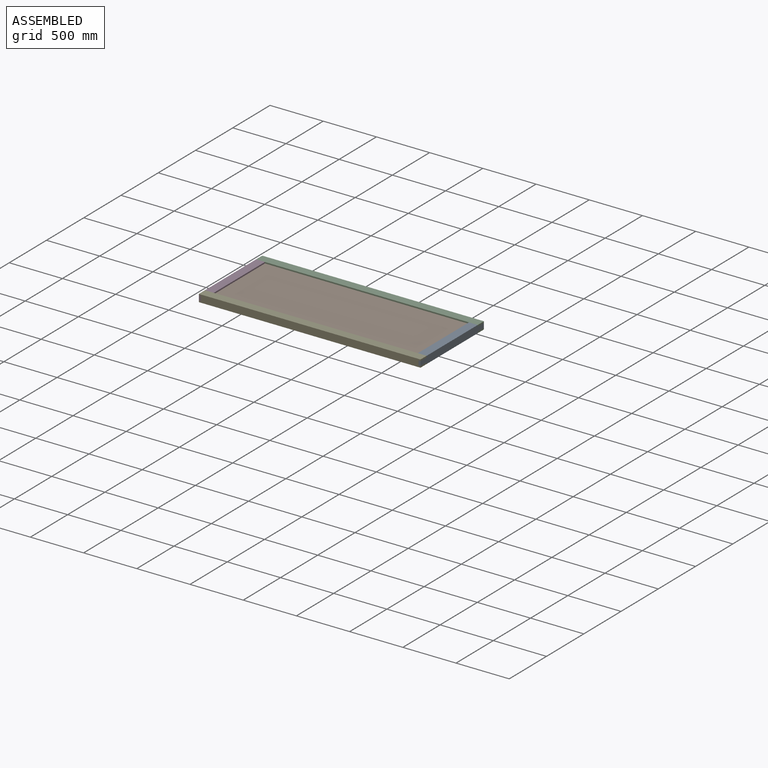
[diagram: assembled view]
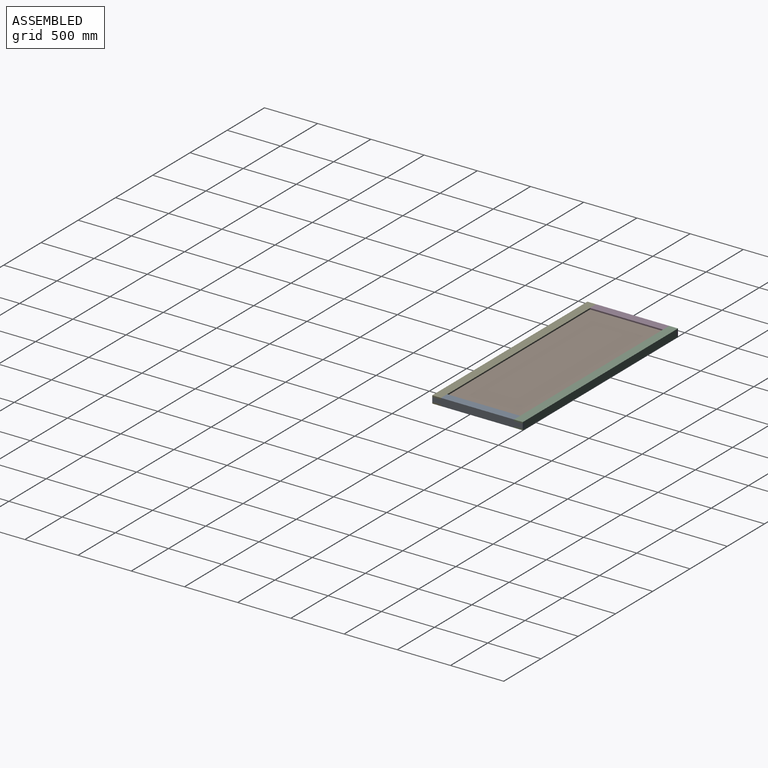
[diagram: assembled view, second angle]
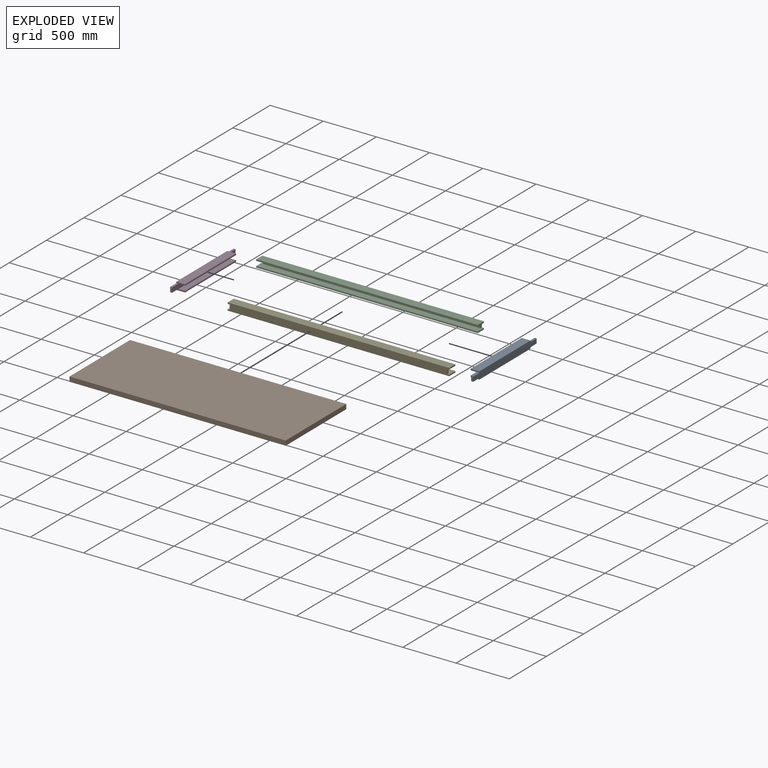
[diagram: exploded view]
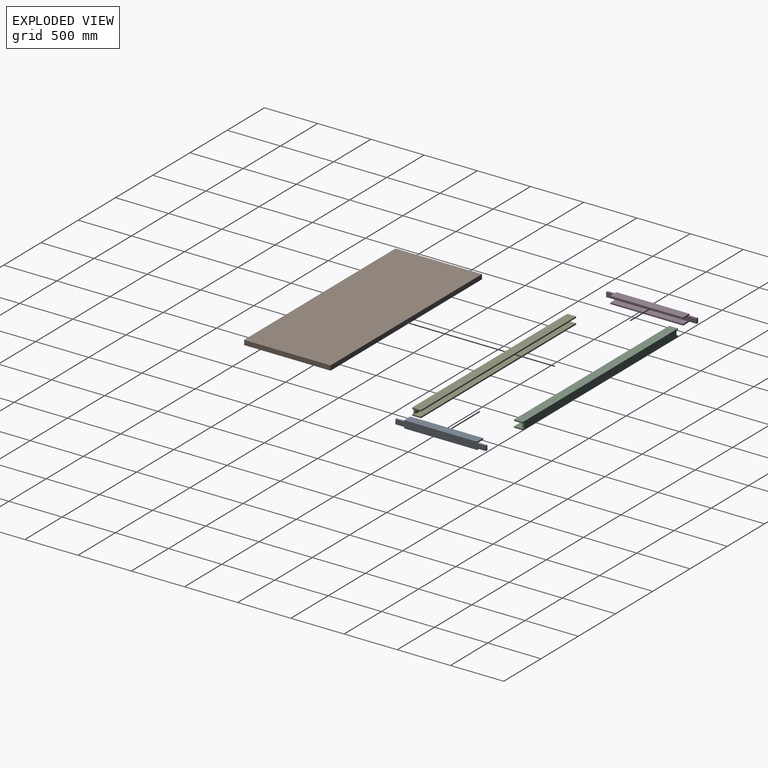
[diagram: exploded view, second angle]
ASSEMBLY  parts=5 mates=4
PART A: 18 faces, bbox 850.9x82.6x69.9 mm
  f0: plane 850.9x44.45mm, normal (0,-1,0), area 37822.5mm2, adj f1,f6,f7,f8,f9,f10,f14,f16
  f1: plane 82.55x19.05mm, normal (0,0,1), area 1572.6mm2, adj f0,f4,f7,f11
  f2: plane 82.55x12.7mm, normal (-1,0,0), area 1048.4mm2, adj f4,f5,f10,f16,f17
  f3: plane 82.55x12.7mm, normal (1,0,0), area 1048.4mm2, adj f4,f5,f6,f16,f17
  f4: plane 850.9x69.85mm, normal (0,1,0), area 55241.8mm2, adj f1,f2,f3,f5,f6,f7,f8,f9
  f5: plane 685.8x82.55mm, normal (0,0,-1), area 56612.8mm2, adj f2,f3,f4,f17
  f6: plane 82.55x19.05mm, normal (0,0,-1), area 1572.6mm2, adj f0,f3,f4,f8
  f7: plane 44.45x19.05mm, normal (-1,0,0), area 846.8mm2, adj f0,f1,f4,f10
  f8: plane 44.45x19.05mm, normal (1,0,0), area 846.8mm2, adj f0,f4,f6,f9
  f9: plane 82.55x19.05mm, normal (0,0,1), area 1572.6mm2, adj f0,f4,f8,f12
  f10: plane 82.55x19.05mm, normal (0,0,-1), area 1572.6mm2, adj f0,f2,f4,f7
  f11: plane 82.55x12.7mm, normal (-1,0,0), area 1048.4mm2, adj f1,f4,f13,f14,f15
  f12: plane 82.55x12.7mm, normal (1,0,0), area 1048.4mm2, adj f4,f9,f13,f14,f15
  f13: plane 685.8x82.55mm, normal (0,0,1), area 56612.8mm2, adj f4,f11,f12,f15
  f14: plane 685.8x63.5mm, normal (0,0,-1), area 43548.3mm2, adj f0,f11,f12,f15
  f15: plane 685.8x12.7mm, normal (0,-1,0), area 8709.7mm2, adj f11,f12,f13,f14
  f16: plane 685.8x63.5mm, normal (0,0,1), area 43548.3mm2, adj f0,f2,f3,f17
  f17: plane 685.8x12.7mm, normal (0,-1,0), area 8709.7mm2, adj f2,f3,f5,f16
PART B: 6 faces, bbox 812.8x2032x44.5 mm
  f0: plane 2032x44.45mm, normal (-1,0,0), area 90322.4mm2, adj f1,f3,f4,f5
  f1: plane 812.8x44.45mm, normal (0,-1,0), area 36129mm2, adj f0,f2,f4,f5
  f2: plane 2032x44.45mm, normal (1,0,0), area 90322.4mm2, adj f1,f3,f4,f5
  f3: plane 812.8x44.45mm, normal (0,1,0), area 36129mm2, adj f0,f2,f4,f5
  f4: plane 2032x812.8mm, normal (0,0,1), area 1651609.6mm2, adj f0,f1,f2,f3
  f5: plane 2032x812.8mm, normal (0,0,-1), area 1651609.6mm2, adj f0,f1,f2,f3
PART C: 14 faces, bbox 2082.8x82.6x69.9 mm
  f0: plane 2044.7x44.45mm, normal (0,-1,0), area 90886.9mm2, adj f4,f6,f7,f8
  f1: plane 82.55x12.7mm, normal (-1,0,0), area 1048.4mm2, adj f3,f4,f5,f13
  f2: plane 82.55x12.7mm, normal (1,0,0), area 1048.4mm2, adj f3,f4,f5,f13
  f3: plane 2082.8x69.85mm, normal (0,1,0), area 143790mm2, adj f1,f2,f4,f5,f6,f7,f8,f9
  f4: plane 2082.8x82.55mm, normal (0,0,1), area 132983.6mm2, adj f0,f1,f2,f3,f6,f7,f13
  f5: plane 2082.8x82.55mm, normal (0,0,-1), area 171935.1mm2, adj f1,f2,f3,f13
  f6: plane 44.45x19.05mm, normal (-1,0,0), area 846.8mm2, adj f0,f3,f4,f8
  f7: plane 44.45x19.05mm, normal (1,0,0), area 846.8mm2, adj f0,f3,f4,f8
  f8: plane 2082.8x82.55mm, normal (0,0,-1), area 132983.6mm2, adj f0,f3,f6,f7,f9,f10,f12
  f9: plane 82.55x12.7mm, normal (-1,0,0), area 1048.4mm2, adj f3,f8,f11,f12
  f10: plane 82.55x12.7mm, normal (1,0,0), area 1048.4mm2, adj f3,f8,f11,f12
  f11: plane 2082.8x82.55mm, normal (0,0,1), area 171935.1mm2, adj f3,f9,f10,f12
  f12: plane 2082.8x12.7mm, normal (0,-1,0), area 26451.6mm2, adj f8,f9,f10,f11
  f13: plane 2082.8x12.7mm, normal (0,-1,0), area 26451.6mm2, adj f1,f2,f4,f5
PART D: same geometry as A
PART E: same geometry as C
PLACE A rot(axis=(0,0,-1),90deg) t=(1213.04,-41.28,207.62)mm
PLACE B rot(axis=(0,0,1),90deg) t=(1213.04,-790.58,220.32)mm
PLACE C t=(-850.71,22.22,207.62)mm
PLACE D rot(axis=(0,0,1),90deg) t=(-831.66,-727.08,207.62)mm
PLACE E rot(axis=(0,0,-1),180deg) t=(1232.09,-790.58,207.62)mm
MATE fastened E.f6 <-> A.f0  axis (1,0,0) through (1213.04,-809.63,264.77)mm
MATE fastened A.f0 <-> C.f7  axis (-1,0,0) through (1213.04,41.27,264.77)mm
MATE fastened D.f0 <-> C.f6  axis (1,0,0) through (-831.66,41.27,264.77)mm
MATE fastened B.f2 <-> C.f0  axis (0,1,0) through (1213.04,22.22,264.77)mm
